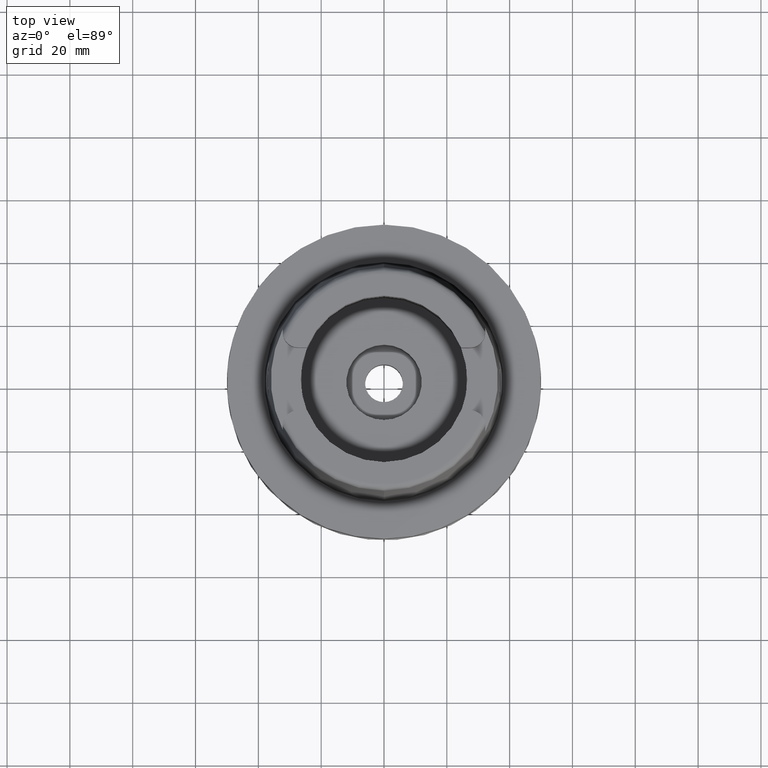
[diagram: clean part render]
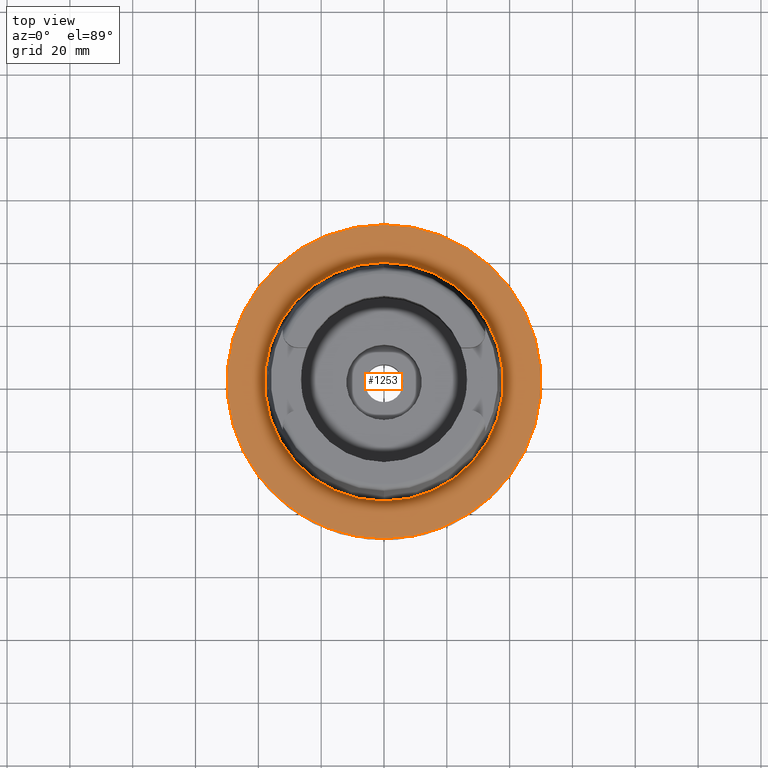
[diagram: same view with one face highlighted and labeled with its STEP entity id]
A machine part, top view. The second image highlights one B-rep face of the part: STEP entity #1253.
In plain terms, the highlighted planar face has unit normal (0, 0, 1).
Its self-contained STEP definition (entity closure, byte-faithful):
#204 = CARTESIAN_POINT ( 'NONE',  ( 0.0000000000000000000, 0.0000000000000000000, 0.0000000000000000000 ) ) ;
#327 = CIRCLE ( 'NONE', #4183, 50.00000000000000000 ) ;
#331 = DIRECTION ( 'NONE',  ( 1.000000000000000000, 0.0000000000000000000, 0.0000000000000000000 ) ) ;
#385 = CARTESIAN_POINT ( 'NONE',  ( 0.0000000000000000000, 0.0000000000000000000, 0.0000000000000000000 ) ) ;
#455 = CARTESIAN_POINT ( 'NONE',  ( 0.0000000000000000000, 0.0000000000000000000, 0.0000000000000000000 ) ) ;
#656 = AXIS2_PLACEMENT_3D ( 'NONE', #784, #1643, #5481 ) ;
#752 = CIRCLE ( 'NONE', #1463, 38.00001658251999714 ) ;
#761 = CIRCLE ( 'NONE', #656, 38.00001658251999714 ) ;
#784 = CARTESIAN_POINT ( 'NONE',  ( 0.0000000000000000000, 0.0000000000000000000, 1.023181539494999863E-12 ) ) ;
#952 = VERTEX_POINT ( 'NONE', #5049 ) ;
#1245 = EDGE_LOOP ( 'NONE', ( #5488, #2852 ) ) ;
#1253 = ADVANCED_FACE ( 'NONE', ( #3691, #5496 ), #5044, .T. ) ;
#1463 = AXIS2_PLACEMENT_3D ( 'NONE', #3594, #2679, #2210 ) ;
#1643 = DIRECTION ( 'NONE',  ( 0.0000000000000000000, 0.0000000000000000000, 1.000000000000000000 ) ) ;
#1664 = CARTESIAN_POINT ( 'NONE',  ( 0.0000000000000000000, 50.00000000000000000, 0.0000000000000000000 ) ) ;
#1946 = AXIS2_PLACEMENT_3D ( 'NONE', #204, #2831, #4581 ) ;
#1989 = CARTESIAN_POINT ( 'NONE',  ( 0.0000000000000000000, 38.00001658251999714, 1.023181539494999863E-12 ) ) ;
#2023 = VERTEX_POINT ( 'NONE', #1989 ) ;
#2171 = EDGE_CURVE ( 'NONE', #952, #3341, #327, .T. ) ;
#2210 = DIRECTION ( 'NONE',  ( 0.0000000000000000000, 1.000000000000000000, 0.0000000000000000000 ) ) ;
#2679 = DIRECTION ( 'NONE',  ( 0.0000000000000000000, 0.0000000000000000000, 1.000000000000000000 ) ) ;
#2748 = VERTEX_POINT ( 'NONE', #5252 ) ;
#2831 = DIRECTION ( 'NONE',  ( 0.0000000000000000000, 0.0000000000000000000, -1.000000000000000000 ) ) ;
#2852 = ORIENTED_EDGE ( 'NONE', *, *, #2171, .F. ) ;
#2964 = DIRECTION ( 'NONE',  ( 0.0000000000000000000, 0.0000000000000000000, 1.000000000000000000 ) ) ;
#3306 = EDGE_CURVE ( 'NONE', #3341, #952, #3658, .T. ) ;
#3341 = VERTEX_POINT ( 'NONE', #1664 ) ;
#3468 = DIRECTION ( 'NONE',  ( 0.0000000000000000000, 0.0000000000000000000, -1.000000000000000000 ) ) ;
#3594 = CARTESIAN_POINT ( 'NONE',  ( 0.0000000000000000000, 0.0000000000000000000, 1.023181539494999863E-12 ) ) ;
#3658 = CIRCLE ( 'NONE', #1946, 50.00000000000000000 ) ;
#3691 = FACE_OUTER_BOUND ( 'NONE', #1245, .T. ) ;
#4183 = AXIS2_PLACEMENT_3D ( 'NONE', #455, #3468, #4343 ) ;
#4200 = ORIENTED_EDGE ( 'NONE', *, *, #5261, .F. ) ;
#4343 = DIRECTION ( 'NONE',  ( 0.0000000000000000000, -1.000000000000000000, 0.0000000000000000000 ) ) ;
#4461 = AXIS2_PLACEMENT_3D ( 'NONE', #385, #2964, #331 ) ;
#4581 = DIRECTION ( 'NONE',  ( 0.0000000000000000000, 1.000000000000000000, 0.0000000000000000000 ) ) ;
#4614 = EDGE_CURVE ( 'NONE', #2023, #2748, #752, .T. ) ;
#4764 = ORIENTED_EDGE ( 'NONE', *, *, #4614, .F. ) ;
#5036 = EDGE_LOOP ( 'NONE', ( #4764, #4200 ) ) ;
#5044 = PLANE ( 'NONE',  #4461 ) ;
#5049 = CARTESIAN_POINT ( 'NONE',  ( 0.0000000000000000000, -50.00000000000000000, 0.0000000000000000000 ) ) ;
#5252 = CARTESIAN_POINT ( 'NONE',  ( 0.0000000000000000000, -38.00001658251999714, 6.821210263297000155E-13 ) ) ;
#5261 = EDGE_CURVE ( 'NONE', #2748, #2023, #761, .T. ) ;
#5481 = DIRECTION ( 'NONE',  ( 0.0000000000000000000, -1.000000000000000000, 0.0000000000000000000 ) ) ;
#5488 = ORIENTED_EDGE ( 'NONE', *, *, #3306, .F. ) ;
#5496 = FACE_BOUND ( 'NONE', #5036, .T. ) ;